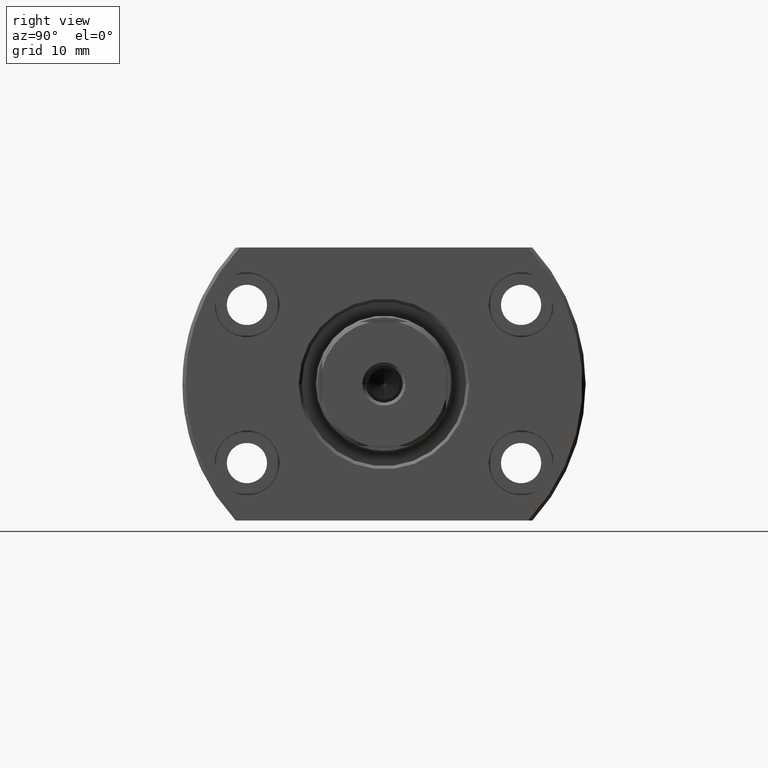
[diagram: clean part render]
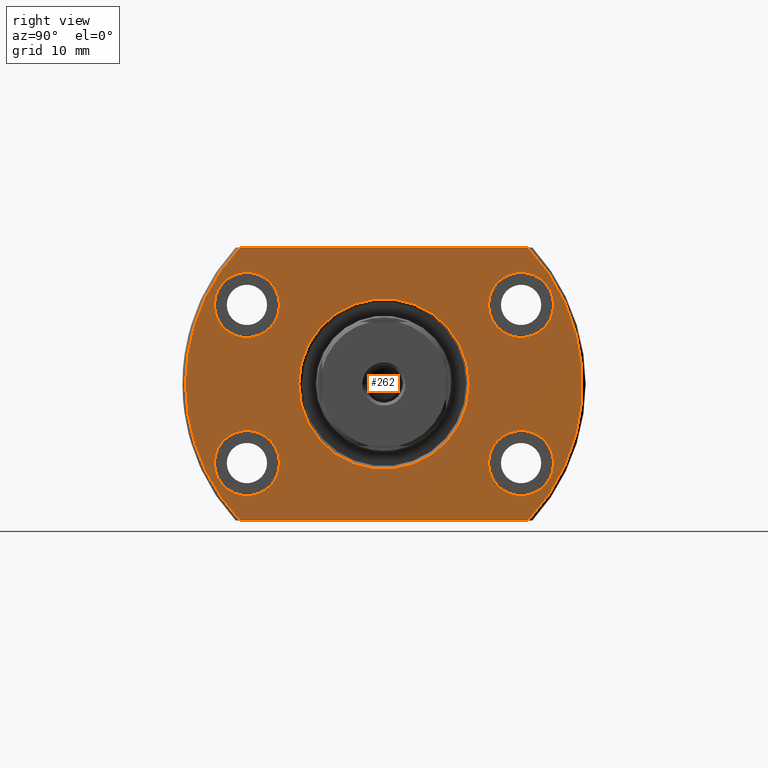
[diagram: same view with one face highlighted and labeled with its STEP entity id]
A machine part, right view. The second image highlights one B-rep face of the part: STEP entity #262.
In plain terms, the highlighted planar face has unit normal (-1, -0, 0).
Its self-contained STEP definition (entity closure, byte-faithful):
#4 = CARTESIAN_POINT ( 'NONE',  ( 31.50000000000063949, 22.09999999999909193, 12.74999999999999822 ) ) ;
#43 = DIRECTION ( 'NONE',  ( 1.000000000000000000, -2.887798767815668620E-14, -6.310887241768094443E-30 ) ) ;
#86 = DIRECTION ( 'NONE',  ( 1.000000000000000000, -2.887798767815668620E-14, -6.310887241768094443E-30 ) ) ;
#91 = CARTESIAN_POINT ( 'NONE',  ( 31.50000000000048672, 16.84999999999909193, -12.75000000000000178 ) ) ;
#114 = CARTESIAN_POINT ( 'NONE',  ( 31.50000000000000000, -32.00000000000000000, -22.00000000000000355 ) ) ;
#155 = VERTEX_POINT ( 'NONE', #3169 ) ;
#170 = VERTEX_POINT ( 'NONE', #1958 ) ;
#176 = EDGE_LOOP ( 'NONE', ( #338, #2451 ) ) ;
#242 = CIRCLE ( 'NONE', #1630, 32.00000000000000000 ) ;
#262 = ADVANCED_FACE ( 'NONE', ( #1068, #2059, #1846, #1117, #2109, #2339 ), #836, .F. ) ;
#271 = CARTESIAN_POINT ( 'NONE',  ( 31.49999999999920774, -27.35000000000091092, 12.74999999999999822 ) ) ;
#304 = DIRECTION ( 'NONE',  ( 1.000000000000000000, 2.721437331438560389E-17, -0.000000000000000000 ) ) ;
#306 = ORIENTED_EDGE ( 'NONE', *, *, #2385, .T. ) ;
#338 = ORIENTED_EDGE ( 'NONE', *, *, #1732, .F. ) ;
#350 = EDGE_CURVE ( 'NONE', #3155, #1493, #1679, .T. ) ;
#360 = CARTESIAN_POINT ( 'NONE',  ( 31.50000000000000000, -23.23790007724450035, -22.00000000000000355 ) ) ;
#447 = ORIENTED_EDGE ( 'NONE', *, *, #558, .F. ) ;
#453 = EDGE_LOOP ( 'NONE', ( #3166, #3128, #817, #2549, #2350 ) ) ;
#495 = VERTEX_POINT ( 'NONE', #1411 ) ;
#539 = VECTOR ( 'NONE', #2346, 1000.000000000000000 ) ;
#555 = DIRECTION ( 'NONE',  ( 1.000000000000000000, -2.887798767815668620E-14, -6.310887241768094443E-30 ) ) ;
#558 = EDGE_CURVE ( 'NONE', #1523, #2084, #1106, .T. ) ;
#559 = VERTEX_POINT ( 'NONE', #1039 ) ;
#590 = VERTEX_POINT ( 'NONE', #2500 ) ;
#613 = CARTESIAN_POINT ( 'NONE',  ( 31.49999999999951328, -16.85000000000091092, 12.74999999999999822 ) ) ;
#647 = CIRCLE ( 'NONE', #957, 32.00000000000000000 ) ;
#694 = EDGE_CURVE ( 'NONE', #2476, #495, #863, .T. ) ;
#699 = CIRCLE ( 'NONE', #903, 5.250000000000000888 ) ;
#713 = CARTESIAN_POINT ( 'NONE',  ( 31.50000000000048672, 16.84999999999909193, 12.74999999999999822 ) ) ;
#729 = DIRECTION ( 'NONE',  ( 0.000000000000000000, -1.000000000000000000, 0.000000000000000000 ) ) ;
#733 = DIRECTION ( 'NONE',  ( -0.000000000000000000, 1.000000000000000000, 0.000000000000000000 ) ) ;
#813 = EDGE_LOOP ( 'NONE', ( #447, #2373 ) ) ;
#817 = ORIENTED_EDGE ( 'NONE', *, *, #2652, .T. ) ;
#836 = PLANE ( 'NONE',  #2040 ) ;
#847 = AXIS2_PLACEMENT_3D ( 'NONE', #2324, #1962, #1752 ) ;
#863 = LINE ( 'NONE', #114, #539 ) ;
#875 = ORIENTED_EDGE ( 'NONE', *, *, #2427, .F. ) ;
#903 = AXIS2_PLACEMENT_3D ( 'NONE', #1099, #555, #1034 ) ;
#923 = DIRECTION ( 'NONE',  ( 0.000000000000000000, 1.000000000000000000, 0.000000000000000000 ) ) ;
#957 = AXIS2_PLACEMENT_3D ( 'NONE', #1003, #1604, #2565 ) ;
#1003 = CARTESIAN_POINT ( 'NONE',  ( 31.50000000000000000, 8.572527594031465301E-16, 0.000000000000000000 ) ) ;
#1004 = CIRCLE ( 'NONE', #2359, 13.74999999999917577 ) ;
#1015 = CARTESIAN_POINT ( 'NONE',  ( 31.50000000000000000, -13.75000000000088107, 1.683889348827607301E-15 ) ) ;
#1034 = DIRECTION ( 'NONE',  ( 2.907726969256361977E-14, 1.000000000000000000, 0.000000000000000000 ) ) ;
#1039 = CARTESIAN_POINT ( 'NONE',  ( 31.50000000000000000, 23.23790007724450035, 22.00000000000000355 ) ) ;
#1068 = FACE_BOUND ( 'NONE', #2499, .T. ) ;
#1087 = CARTESIAN_POINT ( 'NONE',  ( 31.49999999999936051, -22.10000000000091092, -12.75000000000000178 ) ) ;
#1099 = CARTESIAN_POINT ( 'NONE',  ( 31.49999999999936051, -22.10000000000091092, 12.74999999999999822 ) ) ;
#1106 = CIRCLE ( 'NONE', #1878, 5.250000000000000888 ) ;
#1109 = VERTEX_POINT ( 'NONE', #271 ) ;
#1117 = FACE_BOUND ( 'NONE', #813, .T. ) ;
#1157 = CIRCLE ( 'NONE', #2967, 5.250000000000000888 ) ;
#1211 = AXIS2_PLACEMENT_3D ( 'NONE', #2263, #304, #2742 ) ;
#1260 = EDGE_CURVE ( 'NONE', #1109, #1288, #699, .T. ) ;
#1288 = VERTEX_POINT ( 'NONE', #613 ) ;
#1303 = VERTEX_POINT ( 'NONE', #713 ) ;
#1329 = CARTESIAN_POINT ( 'NONE',  ( 31.50000000000063949, 22.09999999999909193, 12.74999999999999822 ) ) ;
#1358 = CIRCLE ( 'NONE', #2869, 5.250000000000000888 ) ;
#1367 = CIRCLE ( 'NONE', #2212, 5.250000000000000888 ) ;
#1411 = CARTESIAN_POINT ( 'NONE',  ( 31.50000000000000000, 23.23790007724450035, -22.00000000000000355 ) ) ;
#1424 = CIRCLE ( 'NONE', #2100, 5.250000000000000888 ) ;
#1425 = CARTESIAN_POINT ( 'NONE',  ( 31.50000000000000000, 8.572527594031465301E-16, 0.000000000000000000 ) ) ;
#1466 = CIRCLE ( 'NONE', #2203, 5.250000000000000888 ) ;
#1489 = CARTESIAN_POINT ( 'NONE',  ( 31.49999999999936051, -22.10000000000091092, -12.75000000000000178 ) ) ;
#1493 = VERTEX_POINT ( 'NONE', #1015 ) ;
#1503 = DIRECTION ( 'NONE',  ( 1.000000000000000000, -2.886466111666351885E-14, 0.000000000000000000 ) ) ;
#1506 = CARTESIAN_POINT ( 'NONE',  ( 31.50000000000000000, 13.74999999999826805, 0.000000000000000000 ) ) ;
#1523 = VERTEX_POINT ( 'NONE', #2978 ) ;
#1559 = CARTESIAN_POINT ( 'NONE',  ( 31.49999999999936051, -22.10000000000091092, 12.74999999999999822 ) ) ;
#1604 = DIRECTION ( 'NONE',  ( 1.000000000000000000, 2.721437331438560389E-17, -0.000000000000000000 ) ) ;
#1630 = AXIS2_PLACEMENT_3D ( 'NONE', #1425, #1703, #923 ) ;
#1666 = VERTEX_POINT ( 'NONE', #91 ) ;
#1679 = CIRCLE ( 'NONE', #847, 13.74999999999917577 ) ;
#1703 = DIRECTION ( 'NONE',  ( 1.000000000000000000, 2.721437331438560389E-17, -0.000000000000000000 ) ) ;
#1715 = DIRECTION ( 'NONE',  ( -1.000000000000000000, -2.721437331438560389E-17, 0.000000000000000000 ) ) ;
#1732 = EDGE_CURVE ( 'NONE', #590, #1303, #1466, .T. ) ;
#1752 = DIRECTION ( 'NONE',  ( 0.000000000000000000, -1.000000000000000000, 0.000000000000000000 ) ) ;
#1770 = DIRECTION ( 'NONE',  ( 2.907726969256361977E-14, 1.000000000000000000, 0.000000000000000000 ) ) ;
#1783 = DIRECTION ( 'NONE',  ( 1.000000000000000000, -2.887798767815668620E-14, -6.310887241768094443E-30 ) ) ;
#1796 = ORIENTED_EDGE ( 'NONE', *, *, #3157, .F. ) ;
#1839 = CARTESIAN_POINT ( 'NONE',  ( 31.50000000000063949, 22.09999999999909193, -12.75000000000000178 ) ) ;
#1846 = FACE_BOUND ( 'NONE', #3072, .T. ) ;
#1851 = DIRECTION ( 'NONE',  ( 2.907726969256361977E-14, 1.000000000000000000, 0.000000000000000000 ) ) ;
#1870 = DIRECTION ( 'NONE',  ( 2.907726969256361977E-14, 1.000000000000000000, 0.000000000000000000 ) ) ;
#1878 = AXIS2_PLACEMENT_3D ( 'NONE', #1489, #1783, #2017 ) ;
#1882 = EDGE_LOOP ( 'NONE', ( #1796, #875 ) ) ;
#1908 = VERTEX_POINT ( 'NONE', #2420 ) ;
#1958 = CARTESIAN_POINT ( 'NONE',  ( 31.50000000000079226, 27.34999999999909548, -12.75000000000000178 ) ) ;
#1962 = DIRECTION ( 'NONE',  ( -1.000000000000000000, -2.721437331438560389E-17, 0.000000000000000000 ) ) ;
#1984 = EDGE_CURVE ( 'NONE', #1908, #559, #2234, .T. ) ;
#2000 = EDGE_CURVE ( 'NONE', #1303, #590, #1157, .T. ) ;
#2017 = DIRECTION ( 'NONE',  ( 2.907726969256361977E-14, 1.000000000000000000, 0.000000000000000000 ) ) ;
#2040 = AXIS2_PLACEMENT_3D ( 'NONE', #3052, #3104, #2801 ) ;
#2059 = FACE_BOUND ( 'NONE', #176, .T. ) ;
#2069 = DIRECTION ( 'NONE',  ( 1.000000000000000000, -2.887798767815668620E-14, -6.310887241768094443E-30 ) ) ;
#2084 = VERTEX_POINT ( 'NONE', #3070 ) ;
#2086 = DIRECTION ( 'NONE',  ( 2.907726969256361977E-14, 1.000000000000000000, 0.000000000000000000 ) ) ;
#2100 = AXIS2_PLACEMENT_3D ( 'NONE', #1839, #2069, #2845 ) ;
#2109 = FACE_BOUND ( 'NONE', #1882, .T. ) ;
#2133 = EDGE_CURVE ( 'NONE', #1288, #1109, #1358, .T. ) ;
#2154 = AXIS2_PLACEMENT_3D ( 'NONE', #1087, #2822, #1870 ) ;
#2203 = AXIS2_PLACEMENT_3D ( 'NONE', #1329, #2321, #2086 ) ;
#2212 = AXIS2_PLACEMENT_3D ( 'NONE', #2507, #43, #1770 ) ;
#2216 = CARTESIAN_POINT ( 'NONE',  ( 31.50000000000000000, -9.092368251749008943E-13, 0.000000000000000000 ) ) ;
#2230 = ORIENTED_EDGE ( 'NONE', *, *, #1260, .F. ) ;
#2234 = LINE ( 'NONE', #2957, #2411 ) ;
#2263 = CARTESIAN_POINT ( 'NONE',  ( 31.50000000000000000, 8.572527594031465301E-16, 0.000000000000000000 ) ) ;
#2321 = DIRECTION ( 'NONE',  ( 1.000000000000000000, -2.886466111666351885E-14, 0.000000000000000000 ) ) ;
#2324 = CARTESIAN_POINT ( 'NONE',  ( 31.50000000000000000, -9.092368251749008943E-13, 0.000000000000000000 ) ) ;
#2339 = FACE_OUTER_BOUND ( 'NONE', #453, .T. ) ;
#2346 = DIRECTION ( 'NONE',  ( -2.721437331438560389E-17, 1.000000000000000000, -0.000000000000000000 ) ) ;
#2350 = ORIENTED_EDGE ( 'NONE', *, *, #2854, .T. ) ;
#2359 = AXIS2_PLACEMENT_3D ( 'NONE', #2216, #1715, #729 ) ;
#2373 = ORIENTED_EDGE ( 'NONE', *, *, #2682, .F. ) ;
#2385 = EDGE_CURVE ( 'NONE', #1493, #3155, #1004, .T. ) ;
#2411 = VECTOR ( 'NONE', #733, 1000.000000000000000 ) ;
#2420 = CARTESIAN_POINT ( 'NONE',  ( 31.50000000000000000, -23.23790007724449680, 22.00000000000000355 ) ) ;
#2427 = EDGE_CURVE ( 'NONE', #1666, #170, #1424, .T. ) ;
#2451 = ORIENTED_EDGE ( 'NONE', *, *, #2000, .F. ) ;
#2476 = VERTEX_POINT ( 'NONE', #360 ) ;
#2499 = EDGE_LOOP ( 'NONE', ( #2598, #306 ) ) ;
#2500 = CARTESIAN_POINT ( 'NONE',  ( 31.50000000000079226, 27.34999999999909548, 12.74999999999999822 ) ) ;
#2502 = DIRECTION ( 'NONE',  ( 2.907726969256361977E-14, 1.000000000000000000, 0.000000000000000000 ) ) ;
#2507 = CARTESIAN_POINT ( 'NONE',  ( 31.50000000000063949, 22.09999999999909193, -12.75000000000000178 ) ) ;
#2523 = EDGE_CURVE ( 'NONE', #1908, #155, #3031, .T. ) ;
#2549 = ORIENTED_EDGE ( 'NONE', *, *, #694, .T. ) ;
#2565 = DIRECTION ( 'NONE',  ( 0.000000000000000000, 1.000000000000000000, 0.000000000000000000 ) ) ;
#2598 = ORIENTED_EDGE ( 'NONE', *, *, #350, .T. ) ;
#2652 = EDGE_CURVE ( 'NONE', #155, #2476, #647, .T. ) ;
#2682 = EDGE_CURVE ( 'NONE', #2084, #1523, #3201, .T. ) ;
#2742 = DIRECTION ( 'NONE',  ( 0.000000000000000000, 1.000000000000000000, 0.000000000000000000 ) ) ;
#2801 = DIRECTION ( 'NONE',  ( 2.721437331438560389E-17, -1.000000000000000000, 0.000000000000000000 ) ) ;
#2822 = DIRECTION ( 'NONE',  ( 1.000000000000000000, -2.887798767815668620E-14, -6.310887241768094443E-30 ) ) ;
#2845 = DIRECTION ( 'NONE',  ( 2.907726969256361977E-14, 1.000000000000000000, 0.000000000000000000 ) ) ;
#2854 = EDGE_CURVE ( 'NONE', #495, #559, #242, .T. ) ;
#2869 = AXIS2_PLACEMENT_3D ( 'NONE', #1559, #86, #1851 ) ;
#2937 = ORIENTED_EDGE ( 'NONE', *, *, #2133, .F. ) ;
#2957 = CARTESIAN_POINT ( 'NONE',  ( 31.50000000000000000, 23.92174742781217489, 22.00000000000000355 ) ) ;
#2967 = AXIS2_PLACEMENT_3D ( 'NONE', #4, #1503, #2502 ) ;
#2978 = CARTESIAN_POINT ( 'NONE',  ( 31.49999999999951328, -16.85000000000091092, -12.75000000000000178 ) ) ;
#3031 = CIRCLE ( 'NONE', #1211, 32.00000000000000000 ) ;
#3052 = CARTESIAN_POINT ( 'NONE',  ( 31.50000000000000000, -32.00000000000000000, 0.000000000000000000 ) ) ;
#3070 = CARTESIAN_POINT ( 'NONE',  ( 31.49999999999920774, -27.35000000000091092, -12.75000000000000178 ) ) ;
#3072 = EDGE_LOOP ( 'NONE', ( #2937, #2230 ) ) ;
#3104 = DIRECTION ( 'NONE',  ( -1.000000000000000000, -2.721437331438560389E-17, 0.000000000000000000 ) ) ;
#3128 = ORIENTED_EDGE ( 'NONE', *, *, #2523, .T. ) ;
#3155 = VERTEX_POINT ( 'NONE', #1506 ) ;
#3157 = EDGE_CURVE ( 'NONE', #170, #1666, #1367, .T. ) ;
#3166 = ORIENTED_EDGE ( 'NONE', *, *, #1984, .F. ) ;
#3169 = CARTESIAN_POINT ( 'NONE',  ( 31.50000000000000000, -32.00000000000000000, 0.000000000000000000 ) ) ;
#3201 = CIRCLE ( 'NONE', #2154, 5.250000000000000888 ) ;